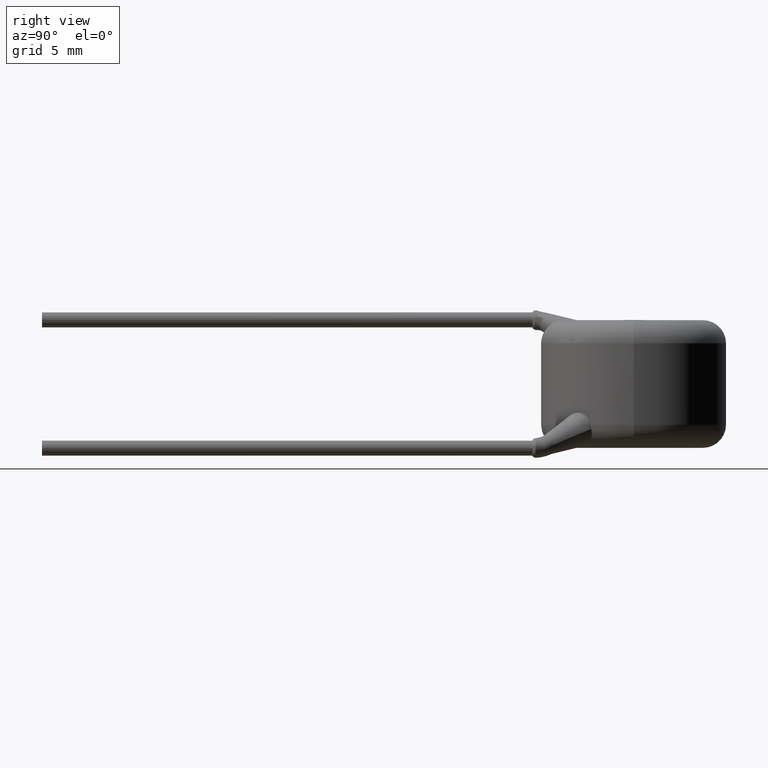
[diagram: clean part render]
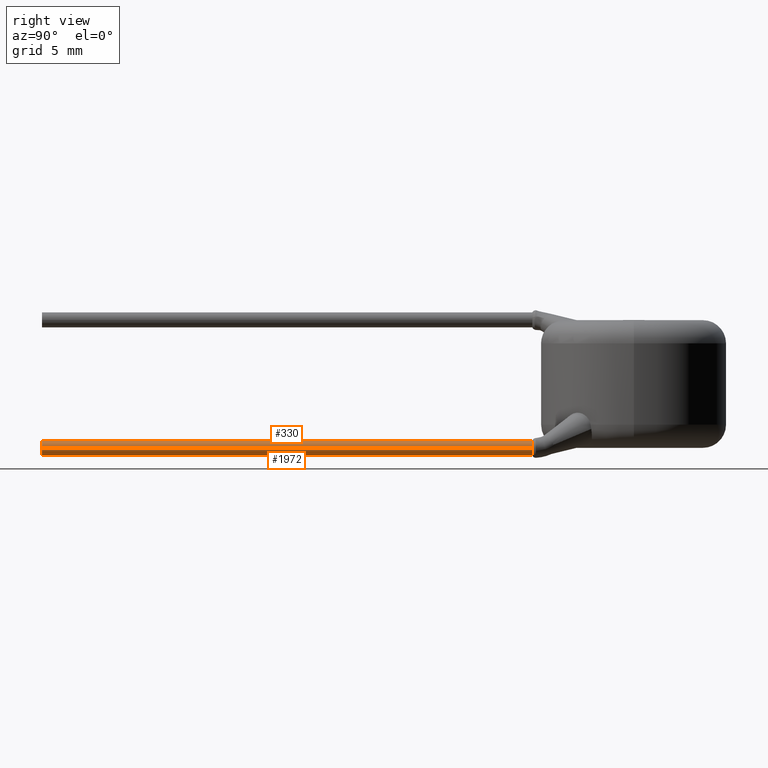
[diagram: same view with one multi-face feature highlighted, each face labeled with its STEP entity id]
A machine part, right view. The highlighted faces form ONE feature: a constant-radius fillet chain: 2 tangent blend faces with common blend radius 0.325 mm. The faces share edges in the B-rep.
Their STEP definitions:
[1] entity #330 (Cylinder):
#10 = ORIENTED_EDGE ( 'NONE', *, *, #2982, .F. ) ;
#106 = LINE ( 'NONE', #2913, #2937 ) ;
#330 = ADVANCED_FACE ( 'NONE', ( #3067 ), #2557, .T. ) ;
#389 = AXIS2_PLACEMENT_3D ( 'NONE', #3607, #1345, #659 ) ;
#403 = CIRCLE ( 'NONE', #3204, 0.3249999999999994600 ) ;
#487 = AXIS2_PLACEMENT_3D ( 'NONE', #3410, #3384, #3743 ) ;
#508 = VERTEX_POINT ( 'NONE', #940 ) ;
#659 = DIRECTION ( 'NONE',  ( 0.9926069709457832100, 0.0000000000000000000, -0.1213729839372709600 ) ) ;
#761 = VERTEX_POINT ( 'NONE', #1399 ) ;
#836 = VERTEX_POINT ( 'NONE', #3363 ) ;
#889 = DIRECTION ( 'NONE',  ( 5.551115123125782700E-017, 1.000000000000000000, -5.551115123125782700E-017 ) ) ;
#940 = CARTESIAN_POINT ( 'NONE',  ( 4.492655359751602800, -25.50000000000000400, -0.01236290199780362500 ) ) ;
#1104 = AXIS2_PLACEMENT_3D ( 'NONE', #4223, #889, #1236 ) ;
#1177 = EDGE_CURVE ( 'NONE', #1841, #1484, #3366, .T. ) ;
#1236 = DIRECTION ( 'NONE',  ( 0.9926069709457838700, 0.0000000000000000000, -0.1213729839372663100 ) ) ;
#1261 = CARTESIAN_POINT ( 'NONE',  ( 4.198720322755237400, -4.374172946578386100, 0.3111490267986242200 ) ) ;
#1307 = EDGE_CURVE ( 'NONE', #836, #508, #403, .T. ) ;
#1345 = DIRECTION ( 'NONE',  ( 5.551115123125782700E-017, 1.000000000000000000, -5.551115123125782700E-017 ) ) ;
#1399 = CARTESIAN_POINT ( 'NONE',  ( 4.492655359751604600, -4.374172946578386100, -0.01236290199780362500 ) ) ;
#1484 = VERTEX_POINT ( 'NONE', #1261 ) ;
#1487 = CIRCLE ( 'NONE', #1104, 0.3250000000000001200 ) ;
#1736 = DIRECTION ( 'NONE',  ( 0.9926069709457832100, 0.0000000000000000000, -0.1213729839372709600 ) ) ;
#1841 = VERTEX_POINT ( 'NONE', #3982 ) ;
#1965 = ORIENTED_EDGE ( 'NONE', *, *, #2401, .T. ) ;
#2232 = ORIENTED_EDGE ( 'NONE', *, *, #1177, .F. ) ;
#2263 = ORIENTED_EDGE ( 'NONE', *, *, #3705, .F. ) ;
#2401 = EDGE_CURVE ( 'NONE', #1841, #836, #4054, .T. ) ;
#2496 = CARTESIAN_POINT ( 'NONE',  ( 3.842655359751604700, -4.374172946578386100, -0.01236290199780423800 ) ) ;
#2557 = CYLINDRICAL_SURFACE ( 'NONE', #487, 0.3249999999999997900 ) ;
#2598 = DIRECTION ( 'NONE',  ( -8.211387282448878500E-017, -1.000000000000000000, 6.158540461836659200E-017 ) ) ;
#2746 = CARTESIAN_POINT ( 'NONE',  ( 4.167655359751602600, -25.50000000000000400, -0.01236290199780297500 ) ) ;
#2913 = CARTESIAN_POINT ( 'NONE',  ( 4.492655359751604600, -4.374172946578386100, -0.01236290199780427600 ) ) ;
#2937 = VECTOR ( 'NONE', #2598, 1000.000000000000000 ) ;
#2982 = EDGE_CURVE ( 'NONE', #761, #508, #106, .T. ) ;
#3067 = FACE_OUTER_BOUND ( 'NONE', #4022, .T. ) ;
#3204 = AXIS2_PLACEMENT_3D ( 'NONE', #2746, #3709, #1736 ) ;
#3232 = ORIENTED_EDGE ( 'NONE', *, *, #1307, .T. ) ;
#3363 = CARTESIAN_POINT ( 'NONE',  ( 3.842655359751602900, -25.50000000000000400, -0.01236290199780358700 ) ) ;
#3366 = CIRCLE ( 'NONE', #389, 0.3249999999999994600 ) ;
#3384 = DIRECTION ( 'NONE',  ( -8.211387282448878500E-017, -1.000000000000000000, 6.158540461836659200E-017 ) ) ;
#3410 = CARTESIAN_POINT ( 'NONE',  ( 4.167655359751604400, -4.374172946578386100, -0.01236290199780427600 ) ) ;
#3607 = CARTESIAN_POINT ( 'NONE',  ( 4.167655359751604400, -4.374172946578386100, -0.01236290199780427600 ) ) ;
#3705 = EDGE_CURVE ( 'NONE', #1484, #761, #1487, .T. ) ;
#3709 = DIRECTION ( 'NONE',  ( 5.551115123125782700E-017, 1.000000000000000000, -5.551115123125782700E-017 ) ) ;
#3743 = DIRECTION ( 'NONE',  ( 1.000000000000000000, 0.0000000000000000000, 0.0000000000000000000 ) ) ;
#3982 = CARTESIAN_POINT ( 'NONE',  ( 3.842655359751604700, -4.374172946578386100, -0.01236290199780358700 ) ) ;
#4022 = EDGE_LOOP ( 'NONE', ( #2232, #1965, #3232, #10, #2263 ) ) ;
#4054 = LINE ( 'NONE', #2496, #4257 ) ;
#4094 = DIRECTION ( 'NONE',  ( -8.211387282448878500E-017, -1.000000000000000000, 6.158540461836659200E-017 ) ) ;
#4223 = CARTESIAN_POINT ( 'NONE',  ( 4.167655359751604400, -4.374172946578386100, -0.01236290199780427600 ) ) ;
#4257 = VECTOR ( 'NONE', #4094, 1000.000000000000000 ) ;
[2] entity #1972 (Cylinder):
#106 = LINE ( 'NONE', #2913, #2937 ) ;
#233 = DIRECTION ( 'NONE',  ( 0.9926069709457832100, 0.0000000000000000000, -0.1213729839372709600 ) ) ;
#392 = EDGE_CURVE ( 'NONE', #761, #2111, #3322, .T. ) ;
#451 = CARTESIAN_POINT ( 'NONE',  ( 4.167655359751604400, -4.374172946578386100, -0.01236290199780427600 ) ) ;
#508 = VERTEX_POINT ( 'NONE', #940 ) ;
#538 = CIRCLE ( 'NONE', #2426, 0.3249999999999995100 ) ;
#570 = EDGE_LOOP ( 'NONE', ( #2643, #3538, #927, #2788, #2271 ) ) ;
#751 = DIRECTION ( 'NONE',  ( -8.211387282448878500E-017, -1.000000000000000000, 6.158540461836659200E-017 ) ) ;
#761 = VERTEX_POINT ( 'NONE', #1399 ) ;
#836 = VERTEX_POINT ( 'NONE', #3363 ) ;
#863 = DIRECTION ( 'NONE',  ( 5.551115123125782700E-017, 1.000000000000000000, -5.551115123125782700E-017 ) ) ;
#927 = ORIENTED_EDGE ( 'NONE', *, *, #392, .F. ) ;
#934 = AXIS2_PLACEMENT_3D ( 'NONE', #1517, #1170, #1842 ) ;
#940 = CARTESIAN_POINT ( 'NONE',  ( 4.492655359751602800, -25.50000000000000400, -0.01236290199780362500 ) ) ;
#1070 = AXIS2_PLACEMENT_3D ( 'NONE', #4168, #863, #233 ) ;
#1143 = CARTESIAN_POINT ( 'NONE',  ( 4.167655359751604400, -4.374172946578386100, -0.01236290199780427600 ) ) ;
#1170 = DIRECTION ( 'NONE',  ( 5.551115123125782700E-017, 1.000000000000000000, -5.551115123125782700E-017 ) ) ;
#1399 = CARTESIAN_POINT ( 'NONE',  ( 4.492655359751604600, -4.374172946578386100, -0.01236290199780362500 ) ) ;
#1517 = CARTESIAN_POINT ( 'NONE',  ( 4.167655359751604400, -4.374172946578386100, -0.01236290199780427600 ) ) ;
#1728 = EDGE_CURVE ( 'NONE', #2111, #1841, #538, .T. ) ;
#1739 = DIRECTION ( 'NONE',  ( 0.9926069709457829800, 0.0000000000000000000, -0.1213729839372727100 ) ) ;
#1841 = VERTEX_POINT ( 'NONE', #3982 ) ;
#1842 = DIRECTION ( 'NONE',  ( 0.9926069709457837600, 0.0000000000000000000, -0.1213729839372671700 ) ) ;
#1972 = ADVANCED_FACE ( 'NONE', ( #2713 ), #2133, .T. ) ;
#2083 = EDGE_CURVE ( 'NONE', #508, #836, #4186, .T. ) ;
#2111 = VERTEX_POINT ( 'NONE', #2515 ) ;
#2133 = CYLINDRICAL_SURFACE ( 'NONE', #3497, 0.3249999999999997900 ) ;
#2271 = ORIENTED_EDGE ( 'NONE', *, *, #2083, .T. ) ;
#2272 = DIRECTION ( 'NONE',  ( 5.551115123125782700E-017, 1.000000000000000000, -5.551115123125782700E-017 ) ) ;
#2401 = EDGE_CURVE ( 'NONE', #1841, #836, #4054, .T. ) ;
#2426 = AXIS2_PLACEMENT_3D ( 'NONE', #1143, #2272, #1739 ) ;
#2439 = DIRECTION ( 'NONE',  ( 1.000000000000000000, 0.0000000000000000000, 0.0000000000000000000 ) ) ;
#2496 = CARTESIAN_POINT ( 'NONE',  ( 3.842655359751604700, -4.374172946578386100, -0.01236290199780423800 ) ) ;
#2515 = CARTESIAN_POINT ( 'NONE',  ( 4.109417866571352100, -4.374172946578386100, -0.3321024747567794000 ) ) ;
#2598 = DIRECTION ( 'NONE',  ( -8.211387282448878500E-017, -1.000000000000000000, 6.158540461836659200E-017 ) ) ;
#2643 = ORIENTED_EDGE ( 'NONE', *, *, #2401, .F. ) ;
#2713 = FACE_OUTER_BOUND ( 'NONE', #570, .T. ) ;
#2788 = ORIENTED_EDGE ( 'NONE', *, *, #2982, .T. ) ;
#2913 = CARTESIAN_POINT ( 'NONE',  ( 4.492655359751604600, -4.374172946578386100, -0.01236290199780427600 ) ) ;
#2937 = VECTOR ( 'NONE', #2598, 1000.000000000000000 ) ;
#2982 = EDGE_CURVE ( 'NONE', #761, #508, #106, .T. ) ;
#3322 = CIRCLE ( 'NONE', #934, 0.3250000000000001800 ) ;
#3363 = CARTESIAN_POINT ( 'NONE',  ( 3.842655359751602900, -25.50000000000000400, -0.01236290199780358700 ) ) ;
#3497 = AXIS2_PLACEMENT_3D ( 'NONE', #451, #751, #2439 ) ;
#3538 = ORIENTED_EDGE ( 'NONE', *, *, #1728, .F. ) ;
#3982 = CARTESIAN_POINT ( 'NONE',  ( 3.842655359751604700, -4.374172946578386100, -0.01236290199780358700 ) ) ;
#4054 = LINE ( 'NONE', #2496, #4257 ) ;
#4094 = DIRECTION ( 'NONE',  ( -8.211387282448878500E-017, -1.000000000000000000, 6.158540461836659200E-017 ) ) ;
#4168 = CARTESIAN_POINT ( 'NONE',  ( 4.167655359751602600, -25.50000000000000400, -0.01236290199780297500 ) ) ;
#4186 = CIRCLE ( 'NONE', #1070, 0.3249999999999994600 ) ;
#4257 = VECTOR ( 'NONE', #4094, 1000.000000000000000 ) ;